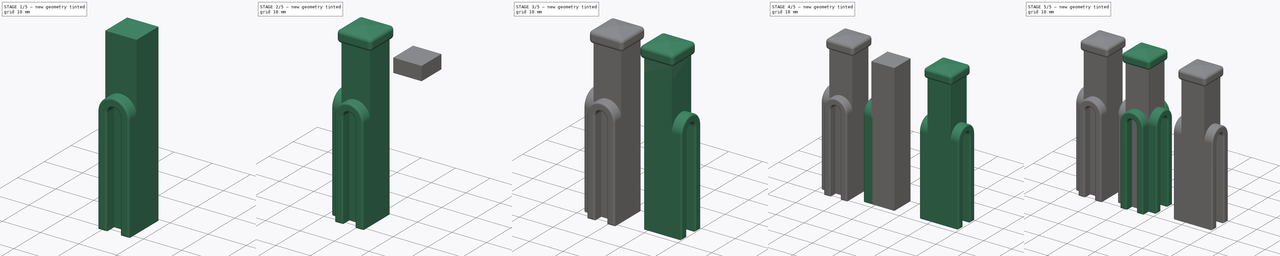
[diagram: build sequence overview — one tinted view per stage of 5, left to right]
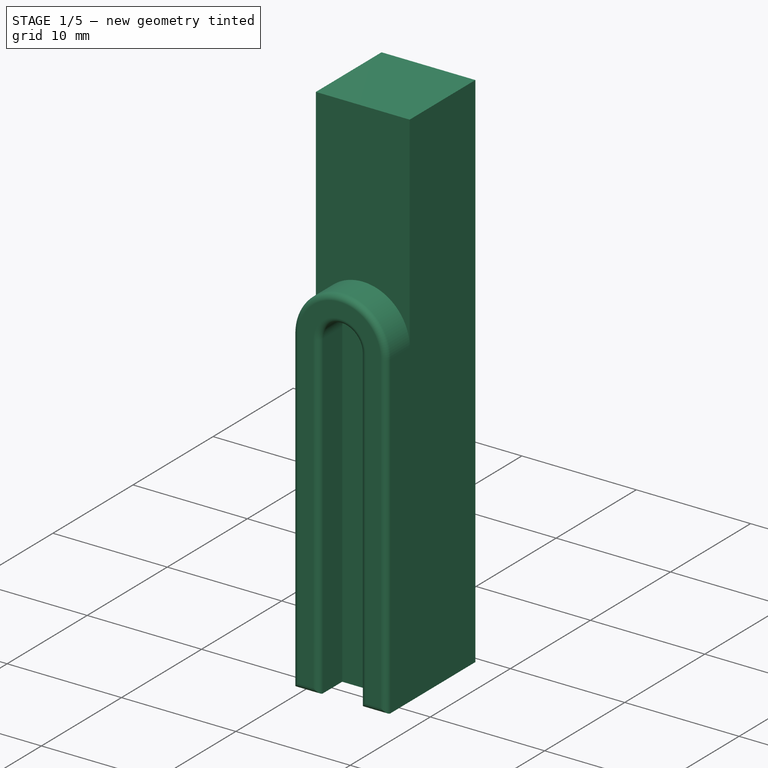
[diagram: stage 1 of 5 — iso view after this stage's code; geometry added in this stage tinted green]
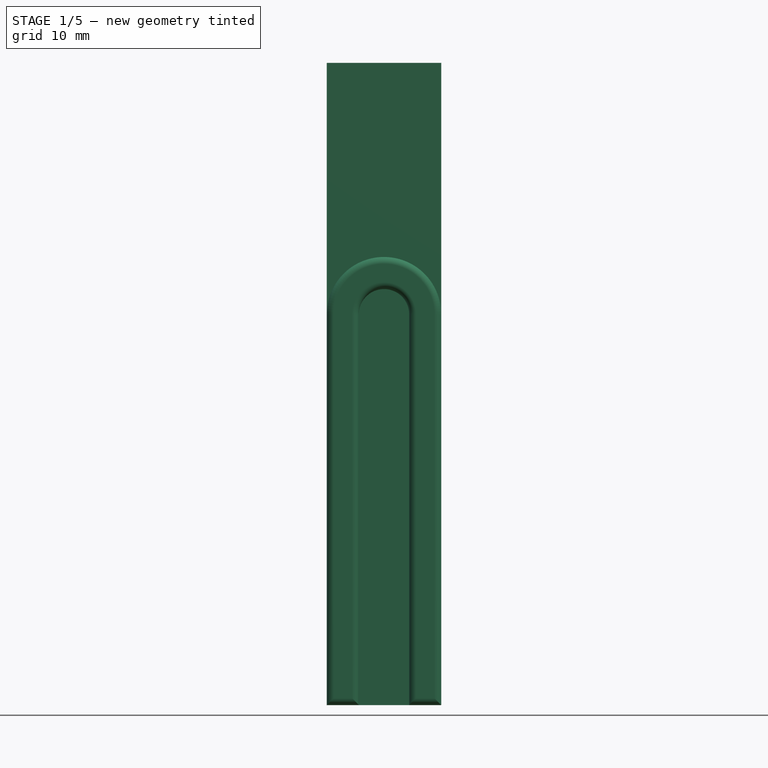
[diagram: stage 1 of 5 — front view after this stage's code; geometry added in this stage tinted green]
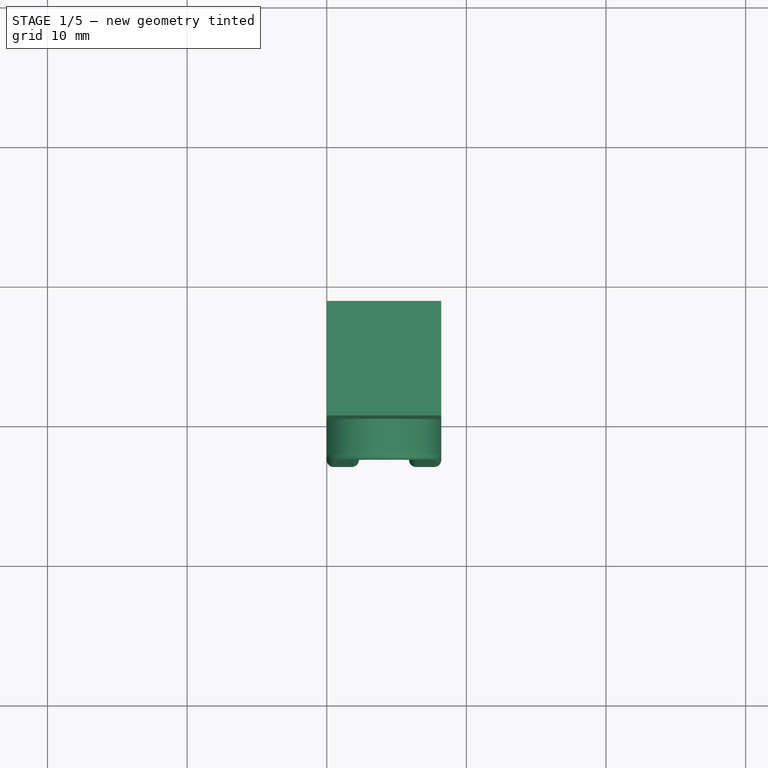
[diagram: stage 1 of 5 — top view after this stage's code; geometry added in this stage tinted green]
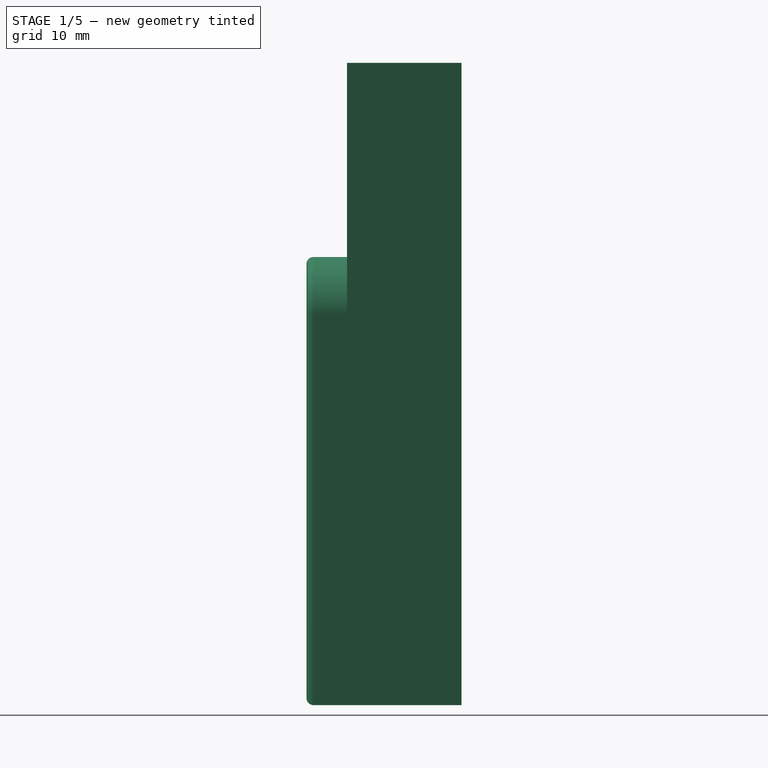
[diagram: stage 1 of 5 — right view after this stage's code; geometry added in this stage tinted green]
FCSTD DOCUMENT  (FreeCAD 0.15R4671 (Git))
Label: conector_almenara
License: All rights reserved
LicenseURL: http://en.wikipedia.org/wiki/All_rights_reserved
objects: Part::Box×9, Part::MultiFuse×6, Part::Fillet×6, Sketcher::SketchObject×6, Part::FeaturePython×5, Part::Wedge×3, PartDesign::Pad×3, PartDesign::Pocket×3, Part::Sphere×3, Part::Cut×3
note: 53 computed .brp shape members not serialized (recipe doc carries the construction recipe); baked Part::Feature solids carry a one-line shape summary decoded from their .brp

FEATURE [Part::Box] Box007  label="poste_solido_02"
  Height = 46
  Length = 8.2
  Width = 8.2
FEATURE [Sketcher::SketchObject] Sketch004
  Placement = pos=(0,0,0) rot=(0.57735,0.57735,0.57735;2.0944rad)
  sketch-geometry (8):
    g0: ArcOfCircle CenterX=0 CenterY=0 CenterZ=0 NormalX=0 NormalY=0 NormalZ=1 Radius=1.8 StartAngle=0 EndAngle=3.14159
    g1: ArcOfCircle CenterX=0 CenterY=0 CenterZ=0 NormalX=0 NormalY=0 NormalZ=1 Radius=4.1 StartAngle=0 EndAngle=3.14159
    g2: LineSegment StartX=-4.1 StartY=0 StartZ=0 EndX=-4.1 EndY=-28 EndZ=0
    g3: LineSegment StartX=-4.1 StartY=-28 StartZ=0 EndX=-1.8 EndY=-28 EndZ=0
    g4: LineSegment StartX=-1.8 StartY=-28 StartZ=0 EndX=-1.8 EndY=0 EndZ=0
    g5: LineSegment StartX=1.8 StartY=0 StartZ=0 EndX=1.8 EndY=-28 EndZ=0
    g6: LineSegment StartX=1.8 StartY=-28 StartZ=0 EndX=4.1 EndY=-28 EndZ=0
    g7: LineSegment StartX=4.1 StartY=-28 StartZ=0 EndX=4.1 EndY=0 EndZ=0
  constraints (25):
    c: Coincident(g0,g-1)
    c: PointOnObject(g0,g-1)
    c: Coincident(g1,g-1)
    c: PointOnObject(g1,g-1)
    c: PointOnObject(g1,g-1)
    c: Coincident(g2,g1)
    c: Vertical(g2)
    c: Coincident(g3,g2)
    c: Horizontal(g3)
    c: Coincident(g4,g0)
    c: Vertical(g4)
    c: Coincident(g5,g0)
    c: Vertical(g5)
    c: Horizontal(g6)
    c: Coincident(g7,g6)
    c: Coincident(g7,g1)
    c: Vertical(g7)
    c: Equal(g2,g4)
    c: Equal(g4,g5)
    c: Equal(g5,g7)
    c: Equal(g3,g6)
    c: Radius(g0) = 1.8
    c: Coincident(g3,g4)
    c: Radius(g1) = 4.1
    c: DistanceY(g2) = -28
FEATURE [PartDesign::Pad] Pad002
  Length = 3.3
  Length2 = 100
  Placement = pos=(0,0,0) rot=(0.57735,0.57735,0.57735;2.0944rad)
  Sketch = -> Sketch004
  Type = 0
FEATURE [Part::Fillet] Fillet005  label="arco1_02"
  Base = -> Pad002
  Edges = 8 edges r=0.5: [Edge4,Edge7,Edge10,Edge13,Edge16,Edge19,Edge22,Edge24]
  Placement = pos=(0.4,4.1,28) rot=(0,0,1;3.14159rad)
FEATURE [Part::FeaturePython] Clone004  label="arco3_03"  # Draft clone (typed FeaturePython)
  Objects = -> [Fillet005]
  Placement = pos=(4.1,0.4,28) rot=(0,0,-1;1.5708rad)
  Scale = (1,1,1)
FEATURE [Sketcher::SketchObject] Sketch005
  ExternalGeometry = -> [Box007]
  Placement = pos=(0,0,0) rot=(1,0,0;3.14159rad)
  Support = -> Box007 [Face5]
  sketch-geometry (4):
    g0: LineSegment StartX=1.5 StartY=-1.5 StartZ=0 EndX=6.7 EndY=-1.5 EndZ=0
    g1: LineSegment StartX=6.7 StartY=-1.5 StartZ=0 EndX=6.7 EndY=-6.7 EndZ=0
    g2: LineSegment StartX=6.7 StartY=-6.7 StartZ=0 EndX=1.5 EndY=-6.7 EndZ=0
    g3: LineSegment StartX=1.5 StartY=-6.7 StartZ=0 EndX=1.5 EndY=-1.5 EndZ=0
  constraints (12):
    c: Coincident(g0,g1)
    c: Coincident(g1,g2)
    c: Coincident(g2,g3)
    c: Coincident(g3,g0)
    c: Horizontal(g0)
    c: Horizontal(g2)
    c: Vertical(g1)
    c: Vertical(g3)
    c: DistanceX(g-1,g0) = 1.5
    c: DistanceY(g-1,g0) = -1.5
    c: DistanceY(g1,g-6) = -1.5
    c: DistanceX(g1,g-6) = 1.5
FEATURE [PartDesign::Pocket] Pocket002  label="poste_vaciado_02"
  Length = 5
  Sketch = -> Sketch005
  Type = 1
FEATURE [Part::Box] Box009  label="Cube009"
  Height = 4
  Length = 8.2
  Width = 8.2
FEATURE [Part::Sphere] Sphere002
  Angle1 = -90
  Angle2 = 90
  Angle3 = 360
  Placement = pos=(4.1,4.1,0) rot=(0,0,1;0rad)
  Radius = 3.68
FEATURE [Part::Cut] Cut002  label="abovedado_interior_02"
  Base = -> Box009
  Placement = pos=(0,0,42) rot=(0,0,1;0rad)
  Tool = -> Sphere002
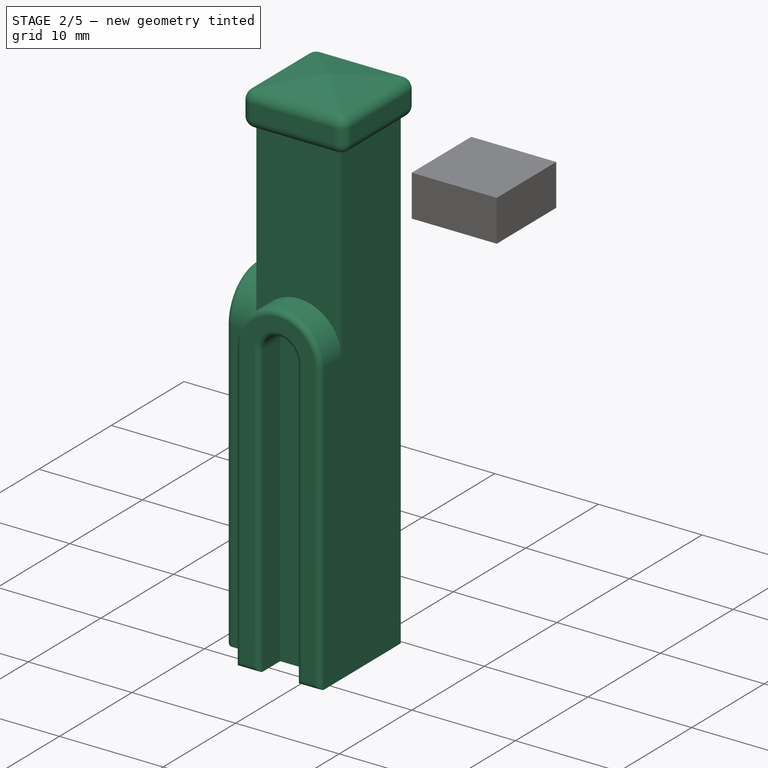
[diagram: stage 2 of 5 — iso view after this stage's code; geometry added in this stage tinted green]
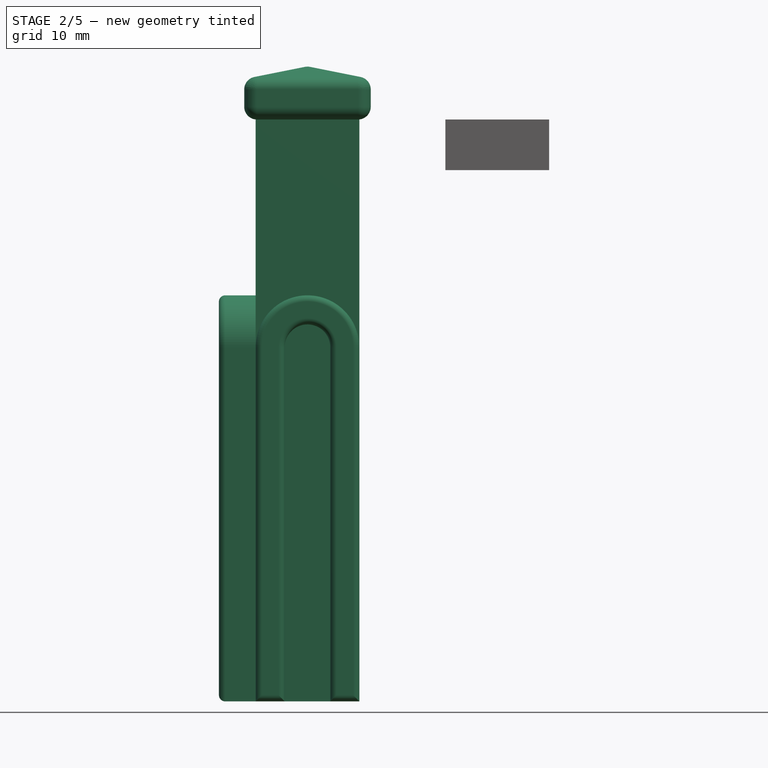
[diagram: stage 2 of 5 — front view after this stage's code; geometry added in this stage tinted green]
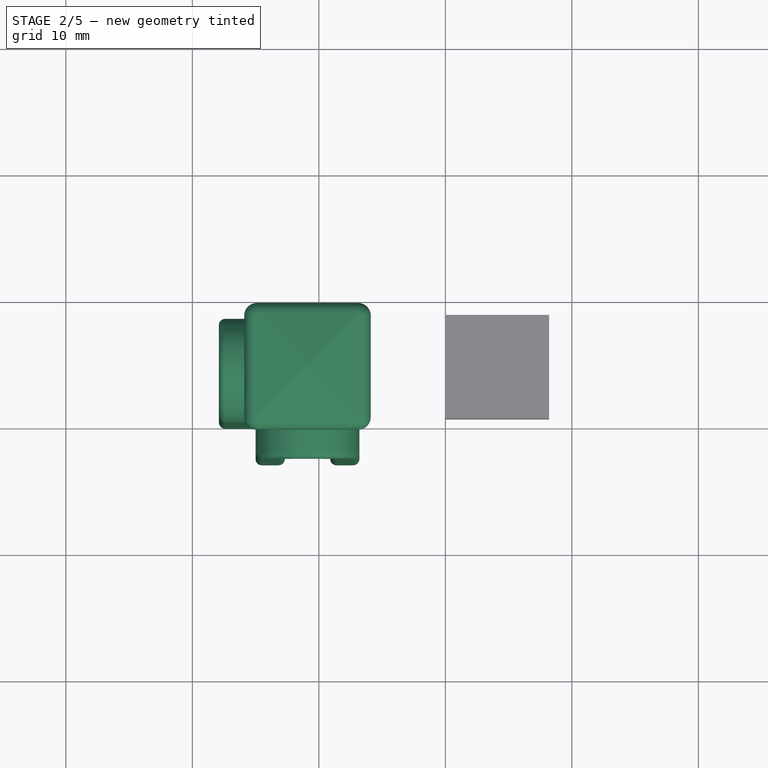
[diagram: stage 2 of 5 — top view after this stage's code; geometry added in this stage tinted green]
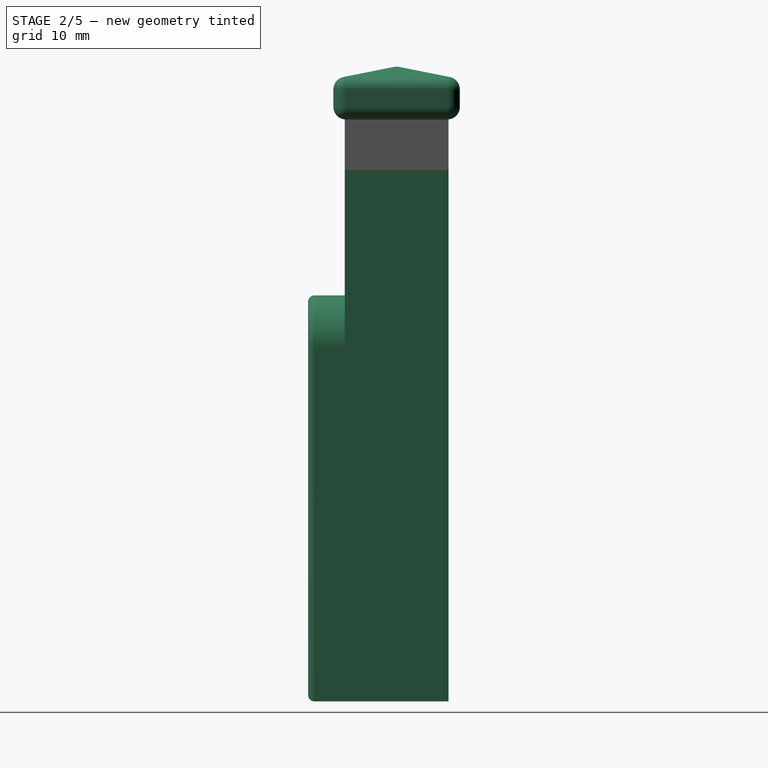
[diagram: stage 2 of 5 — right view after this stage's code; geometry added in this stage tinted green]
FEATURE [Part::Box] Box006  label="Cube006"
  Height = 4
  Length = 8.2
  Width = 8.2
FEATURE [Part::Sphere] Sphere001
  Angle1 = -90
  Angle2 = 90
  Angle3 = 360
  Placement = pos=(4.1,4.1,0) rot=(0,0,1;0rad)
  Radius = 3.68
FEATURE [Part::Cut] Cut001  label="abovedado_interior_01"
  Base = -> Box006
  Placement = pos=(0,0,42) rot=(0,0,1;0rad)
  Tool = -> Sphere001
FEATURE [Part::Wedge] Wedge002
  Placement = pos=(0,10,3.2) rot=(1,0,0;1.5708rad)
  X2max = 5
  X2min = 5
  Xmax = 10
  Xmin = 0
  Ymax = 1
  Ymin = 0
  Z2max = 5
  Z2min = 5
  Zmax = 10
  Zmin = 0
FEATURE [Part::Box] Box008  label="Cube008"
  Height = 3.2
  Length = 10
  Width = 10
FEATURE [Part::MultiFuse] Fusion004
  Shapes = -> [Wedge002,Box008]
FEATURE [Part::Fillet] Fillet004  label="remate_tope_02"
  Base = -> Fusion004
  Edges = 16 edges r=1: [Edge1,Edge2,Edge3,Edge4,Edge5,Edge6,Edge7,Edge8,Edge9,Edge10,Edge11,Edge12,Edge13,Edge14,Edge15,Edge16]
  Placement = pos=(-0.9,-0.9,46) rot=(0,0,1;0rad)
FEATURE [Part::MultiFuse] Fusion005  label="conector_almenara_esquina"
  Placement = pos=(-15,0,0) rot=(0,0,1;0rad)
  Shapes = -> [Fillet004,Pocket002,Fillet005,Clone004,Cut002,Box007]
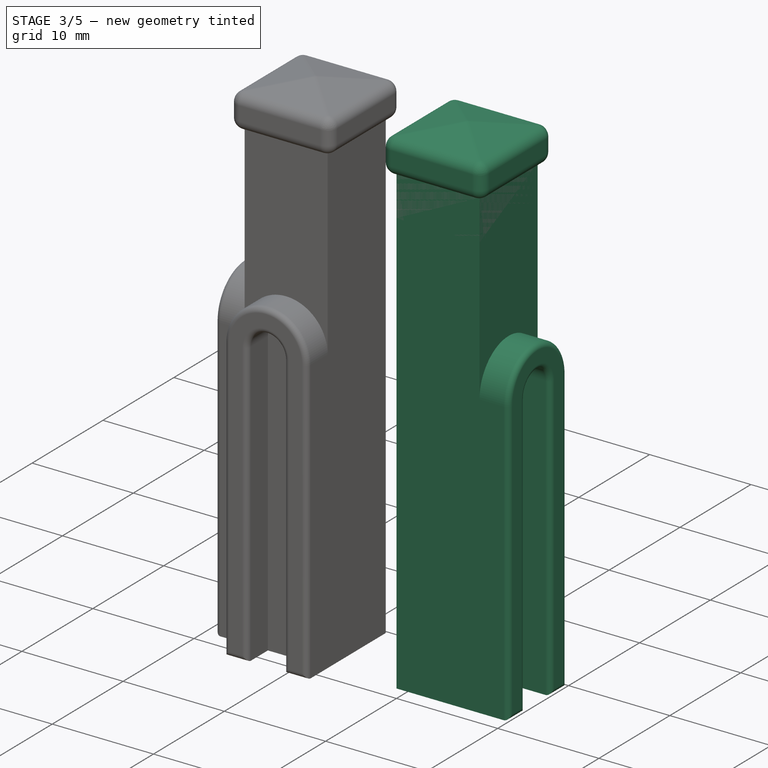
[diagram: stage 3 of 5 — iso view after this stage's code; geometry added in this stage tinted green]
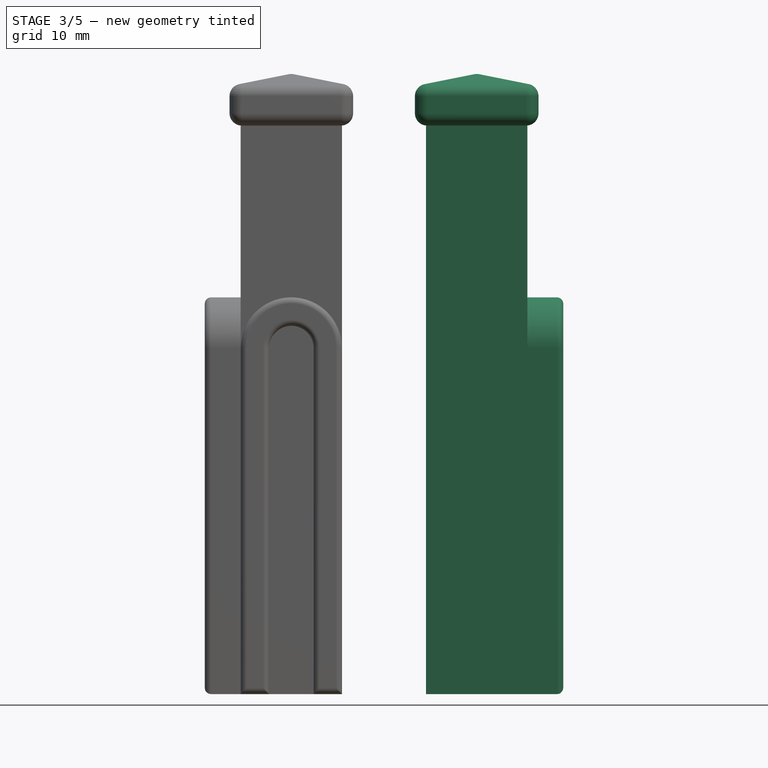
[diagram: stage 3 of 5 — front view after this stage's code; geometry added in this stage tinted green]
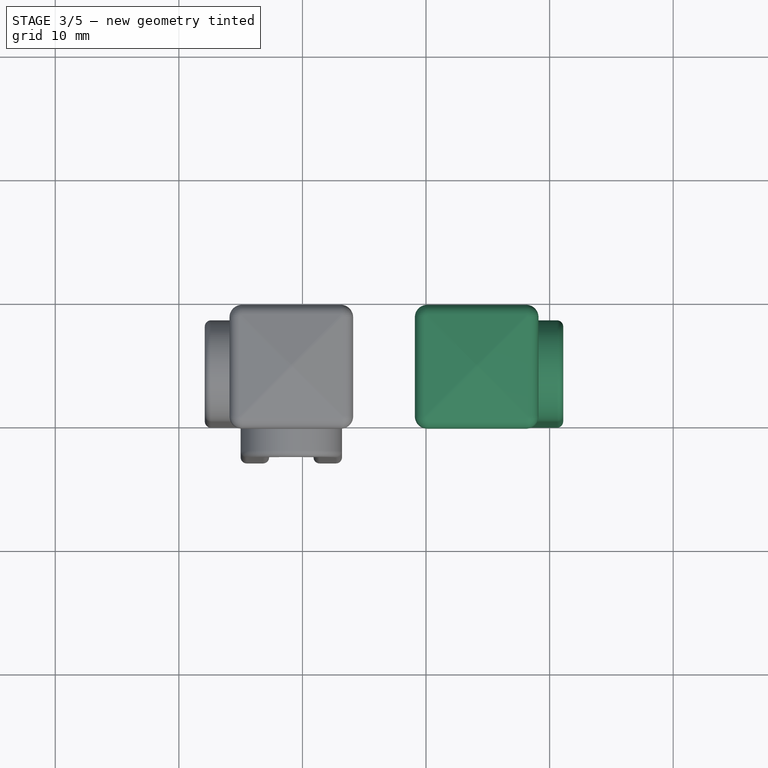
[diagram: stage 3 of 5 — top view after this stage's code; geometry added in this stage tinted green]
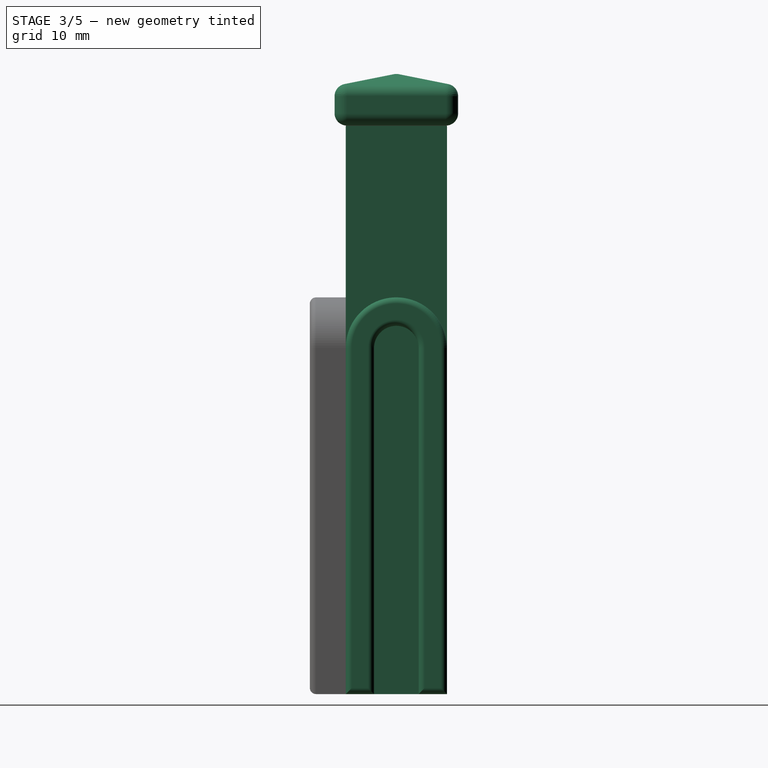
[diagram: stage 3 of 5 — right view after this stage's code; geometry added in this stage tinted green]
FEATURE [Part::Box] Box004  label="poste_solido_01"
  Height = 46
  Length = 8.2
  Width = 8.2
FEATURE [Part::Wedge] Wedge001
  Placement = pos=(0,10,3.2) rot=(1,0,0;1.5708rad)
  X2max = 5
  X2min = 5
  Xmax = 10
  Xmin = 0
  Ymax = 1
  Ymin = 0
  Z2max = 5
  Z2min = 5
  Zmax = 10
  Zmin = 0
FEATURE [Part::Box] Box005  label="Cube005"
  Height = 3.2
  Length = 10
  Width = 10
FEATURE [Part::MultiFuse] Fusion002
  Shapes = -> [Wedge001,Box005]
FEATURE [Part::Fillet] Fillet002  label="remate_tope_01"
  Base = -> Fusion002
  Edges = 16 edges r=1: [Edge1,Edge2,Edge3,Edge4,Edge5,Edge6,Edge7,Edge8,Edge9,Edge10,Edge11,Edge12,Edge13,Edge14,Edge15,Edge16]
  Placement = pos=(-0.9,-0.9,46) rot=(0,0,1;0rad)
FEATURE [Sketcher::SketchObject] Sketch002
  Placement = pos=(0,0,0) rot=(0.57735,0.57735,0.57735;2.0944rad)
  sketch-geometry (8):
    g0: ArcOfCircle CenterX=0 CenterY=0 CenterZ=0 NormalX=0 NormalY=0 NormalZ=1 Radius=1.8 StartAngle=0 EndAngle=3.14159
    g1: ArcOfCircle CenterX=0 CenterY=0 CenterZ=0 NormalX=0 NormalY=0 NormalZ=1 Radius=4.1 StartAngle=0 EndAngle=3.14159
    g2: LineSegment StartX=-4.1 StartY=0 StartZ=0 EndX=-4.1 EndY=-28 EndZ=0
    g3: LineSegment StartX=-4.1 StartY=-28 StartZ=0 EndX=-1.8 EndY=-28 EndZ=0
    g4: LineSegment StartX=-1.8 StartY=-28 StartZ=0 EndX=-1.8 EndY=0 EndZ=0
    g5: LineSegment StartX=1.8 StartY=0 StartZ=0 EndX=1.8 EndY=-28 EndZ=0
    g6: LineSegment StartX=1.8 StartY=-28 StartZ=0 EndX=4.1 EndY=-28 EndZ=0
    g7: LineSegment StartX=4.1 StartY=-28 StartZ=0 EndX=4.1 EndY=0 EndZ=0
  constraints (25):
    c: Coincident(g0,g-1)
    c: PointOnObject(g0,g-1)
    c: Coincident(g1,g-1)
    c: PointOnObject(g1,g-1)
    c: PointOnObject(g1,g-1)
    c: Coincident(g2,g1)
    c: Vertical(g2)
    c: Coincident(g3,g2)
    c: Horizontal(g3)
    c: Coincident(g4,g0)
    c: Vertical(g4)
    c: Coincident(g5,g0)
    c: Vertical(g5)
    c: Horizontal(g6)
    c: Coincident(g7,g6)
    c: Coincident(g7,g1)
    c: Vertical(g7)
    c: Equal(g2,g4)
    c: Equal(g4,g5)
    c: Equal(g5,g7)
    c: Equal(g3,g6)
    c: Radius(g0) = 1.8
    c: Coincident(g3,g4)
    c: Radius(g1) = 4.1
    c: DistanceY(g2) = -28
FEATURE [PartDesign::Pad] Pad001
  Length = 3.3
  Length2 = 100
  Placement = pos=(0,0,0) rot=(0.57735,0.57735,0.57735;2.0944rad)
  Sketch = -> Sketch002
  Type = 0
FEATURE [Part::Fillet] Fillet003  label="arco1_01"
  Base = -> Pad001
  Edges = 8 edges r=0.5: [Edge4,Edge7,Edge10,Edge13,Edge16,Edge19,Edge22,Edge24]
  Placement = pos=(0.4,4.1,28) rot=(0,0,1;3.14159rad)
FEATURE [Part::FeaturePython] Clone003  label="arco2_02"  # Draft clone (typed FeaturePython)
  Objects = -> [Fillet003]
  Placement = pos=(7.8,4.1,28) rot=(0,0,1;0rad)
  Scale = (1,1,1)
FEATURE [Sketcher::SketchObject] Sketch003
  ExternalGeometry = -> [Box004]
  Placement = pos=(0,0,0) rot=(1,0,0;3.14159rad)
  Support = -> Box004 [Face5]
  sketch-geometry (4):
    g0: LineSegment StartX=1.5 StartY=-1.5 StartZ=0 EndX=6.7 EndY=-1.5 EndZ=0
    g1: LineSegment StartX=6.7 StartY=-1.5 StartZ=0 EndX=6.7 EndY=-6.7 EndZ=0
    g2: LineSegment StartX=6.7 StartY=-6.7 StartZ=0 EndX=1.5 EndY=-6.7 EndZ=0
    g3: LineSegment StartX=1.5 StartY=-6.7 StartZ=0 EndX=1.5 EndY=-1.5 EndZ=0
  constraints (12):
    c: Coincident(g0,g1)
    c: Coincident(g1,g2)
    c: Coincident(g2,g3)
    c: Coincident(g3,g0)
    c: Horizontal(g0)
    c: Horizontal(g2)
    c: Vertical(g1)
    c: Vertical(g3)
    c: DistanceX(g-1,g0) = 1.5
    c: DistanceY(g-1,g0) = -1.5
    c: DistanceY(g1,g-6) = -1.5
    c: DistanceX(g1,g-6) = 1.5
FEATURE [PartDesign::Pocket] Pocket001  label="poste_vaciado_01"
  Length = 5
  Sketch = -> Sketch003
  Type = 1
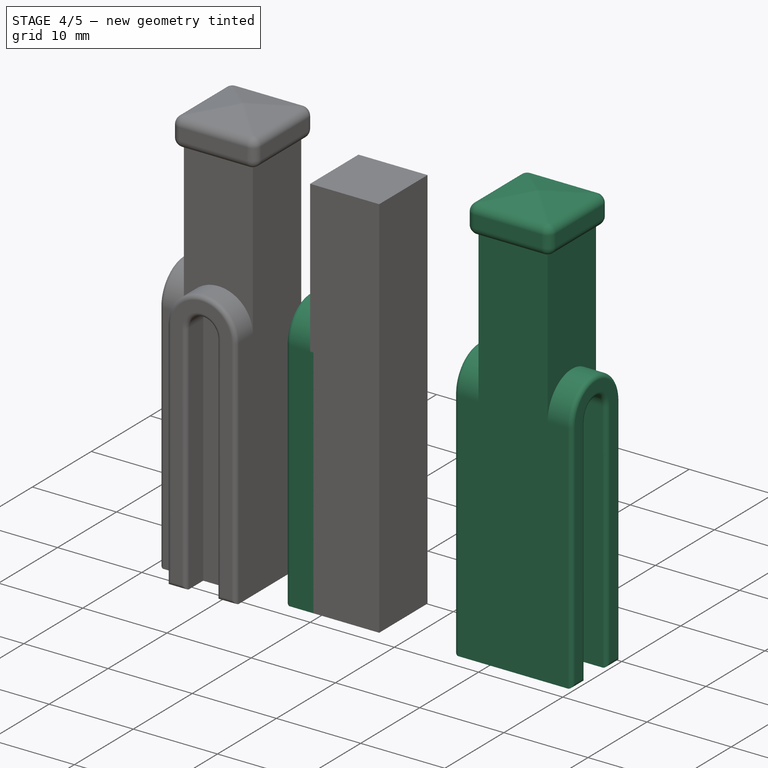
[diagram: stage 4 of 5 — iso view after this stage's code; geometry added in this stage tinted green]
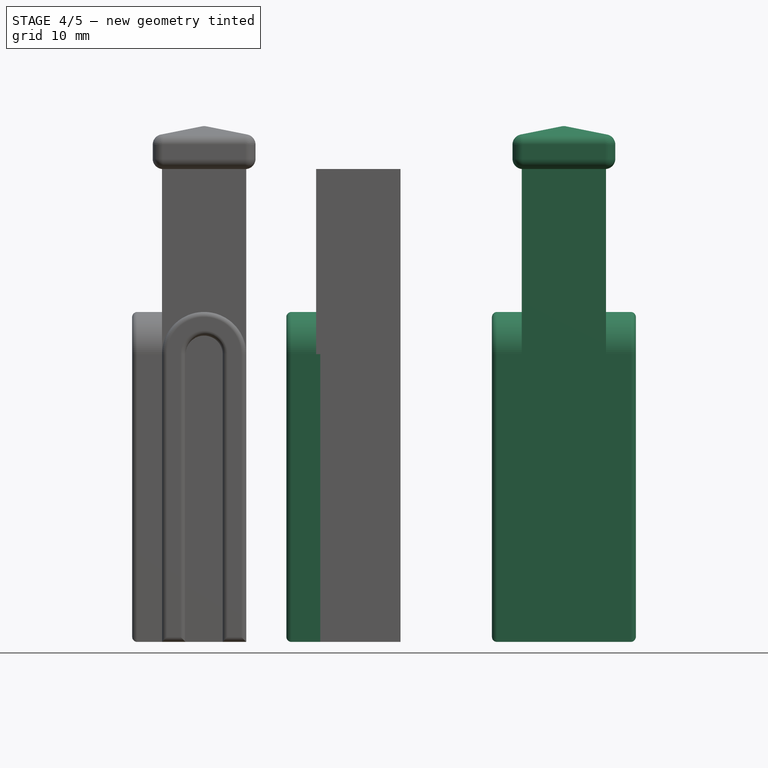
[diagram: stage 4 of 5 — front view after this stage's code; geometry added in this stage tinted green]
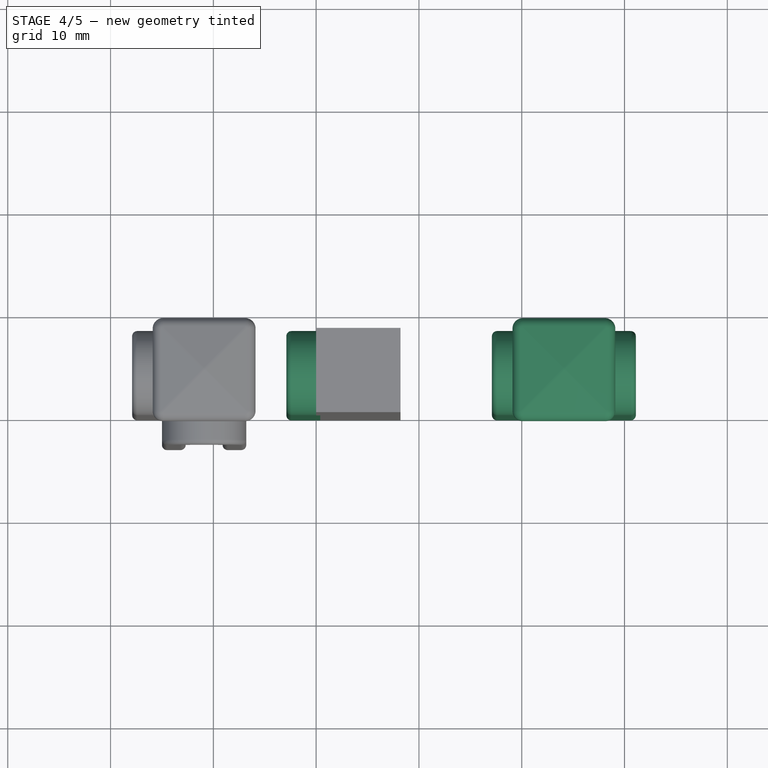
[diagram: stage 4 of 5 — top view after this stage's code; geometry added in this stage tinted green]
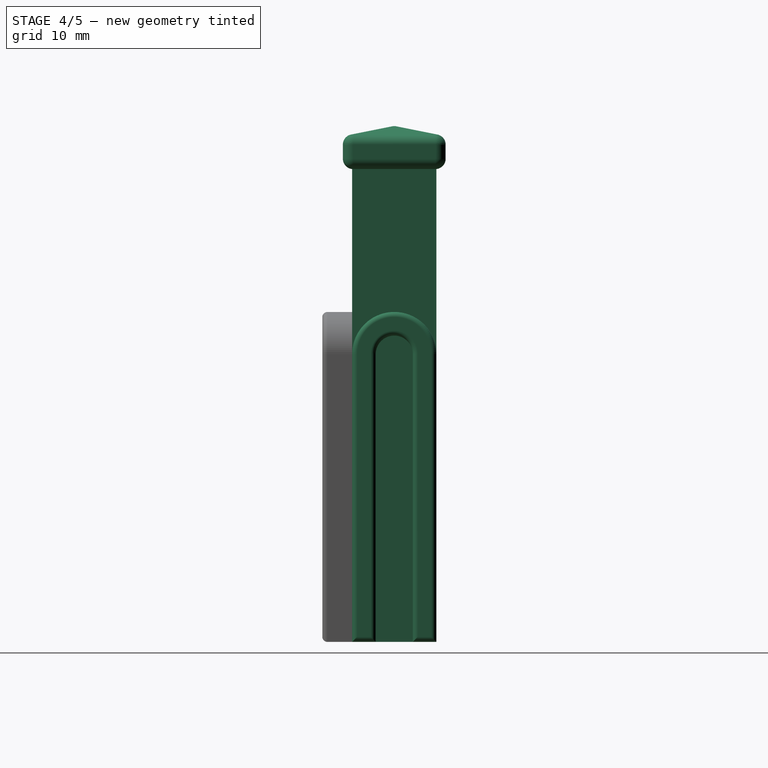
[diagram: stage 4 of 5 — right view after this stage's code; geometry added in this stage tinted green]
FEATURE [Part::Box] Box001  label="poste_solido"
  Height = 46
  Length = 8.2
  Width = 8.2
FEATURE [Sketcher::SketchObject] Sketch
  Placement = pos=(0,0,0) rot=(0.57735,0.57735,0.57735;2.0944rad)
  sketch-geometry (8):
    g0: ArcOfCircle CenterX=0 CenterY=0 CenterZ=0 NormalX=0 NormalY=0 NormalZ=1 Radius=1.8 StartAngle=0 EndAngle=3.14159
    g1: ArcOfCircle CenterX=0 CenterY=0 CenterZ=0 NormalX=0 NormalY=0 NormalZ=1 Radius=4.1 StartAngle=0 EndAngle=3.14159
    g2: LineSegment StartX=-4.1 StartY=0 StartZ=0 EndX=-4.1 EndY=-28 EndZ=0
    g3: LineSegment StartX=-4.1 StartY=-28 StartZ=0 EndX=-1.8 EndY=-28 EndZ=0
    g4: LineSegment StartX=-1.8 StartY=-28 StartZ=0 EndX=-1.8 EndY=0 EndZ=0
    g5: LineSegment StartX=1.8 StartY=0 StartZ=0 EndX=1.8 EndY=-28 EndZ=0
    g6: LineSegment StartX=1.8 StartY=-28 StartZ=0 EndX=4.1 EndY=-28 EndZ=0
    g7: LineSegment StartX=4.1 StartY=-28 StartZ=0 EndX=4.1 EndY=0 EndZ=0
  constraints (25):
    c: Coincident(g0,g-1)
    c: PointOnObject(g0,g-1)
    c: Coincident(g1,g-1)
    c: PointOnObject(g1,g-1)
    c: PointOnObject(g1,g-1)
    c: Coincident(g2,g1)
    c: Vertical(g2)
    c: Coincident(g3,g2)
    c: Horizontal(g3)
    c: Coincident(g4,g0)
    c: Vertical(g4)
    c: Coincident(g5,g0)
    c: Vertical(g5)
    c: Horizontal(g6)
    c: Coincident(g7,g6)
    c: Coincident(g7,g1)
    c: Vertical(g7)
    c: Equal(g2,g4)
    c: Equal(g4,g5)
    c: Equal(g5,g7)
    c: Equal(g3,g6)
    c: Radius(g0) = 1.8
    c: Coincident(g3,g4)
    c: Radius(g1) = 4.1
    c: DistanceY(g2) = -28
FEATURE [PartDesign::Pad] Pad
  Length = 3.3
  Length2 = 100
  Placement = pos=(0,0,0) rot=(0.57735,0.57735,0.57735;2.0944rad)
  Sketch = -> Sketch
  Type = 0
FEATURE [Part::Fillet] Fillet001  label="arco1"
  Base = -> Pad
  Edges = 8 edges r=0.5: [Edge4,Edge7,Edge10,Edge13,Edge16,Edge19,Edge22,Edge24]
  Placement = pos=(0.4,4.1,28) rot=(0,0,1;3.14159rad)
FEATURE [Sketcher::SketchObject] Sketch001
  ExternalGeometry = -> [Box001]
  Placement = pos=(0,0,0) rot=(1,0,0;3.14159rad)
  Support = -> Box001 [Face5]
  sketch-geometry (4):
    g0: LineSegment StartX=1.5 StartY=-1.5 StartZ=0 EndX=6.7 EndY=-1.5 EndZ=0
    g1: LineSegment StartX=6.7 StartY=-1.5 StartZ=0 EndX=6.7 EndY=-6.7 EndZ=0
    g2: LineSegment StartX=6.7 StartY=-6.7 StartZ=0 EndX=1.5 EndY=-6.7 EndZ=0
    g3: LineSegment StartX=1.5 StartY=-6.7 StartZ=0 EndX=1.5 EndY=-1.5 EndZ=0
  constraints (12):
    c: Coincident(g0,g1)
    c: Coincident(g1,g2)
    c: Coincident(g2,g3)
    c: Coincident(g3,g0)
    c: Horizontal(g0)
    c: Horizontal(g2)
    c: Vertical(g1)
    c: Vertical(g3)
    c: DistanceX(g-1,g0) = 1.5
    c: DistanceY(g-1,g0) = -1.5
    c: DistanceY(g1,g-6) = -1.5
    c: DistanceX(g1,g-6) = 1.5
FEATURE [PartDesign::Pocket] Pocket  label="poste_vaciado"
  Length = 5
  Sketch = -> Sketch001
  Type = 1
FEATURE [Part::Box] Box003  label="Cube003"
  Height = 4
  Length = 8.2
  Width = 8.2
FEATURE [Part::Sphere] Sphere
  Angle1 = -90
  Angle2 = 90
  Angle3 = 360
  Placement = pos=(4.1,4.1,0) rot=(0,0,1;0rad)
  Radius = 3.68
FEATURE [Part::Cut] Cut  label="abovedado_interior"
  Base = -> Box003
  Placement = pos=(0,0,42) rot=(0,0,1;0rad)
  Tool = -> Sphere
FEATURE [Part::MultiFuse] Fusion003  label="conector_almenara_linea"
  Placement = pos=(20,0,0) rot=(0,0,1;0rad)
  Shapes = -> [Cut001,Fillet002,Fillet003,Clone003,Pocket001,Box004]
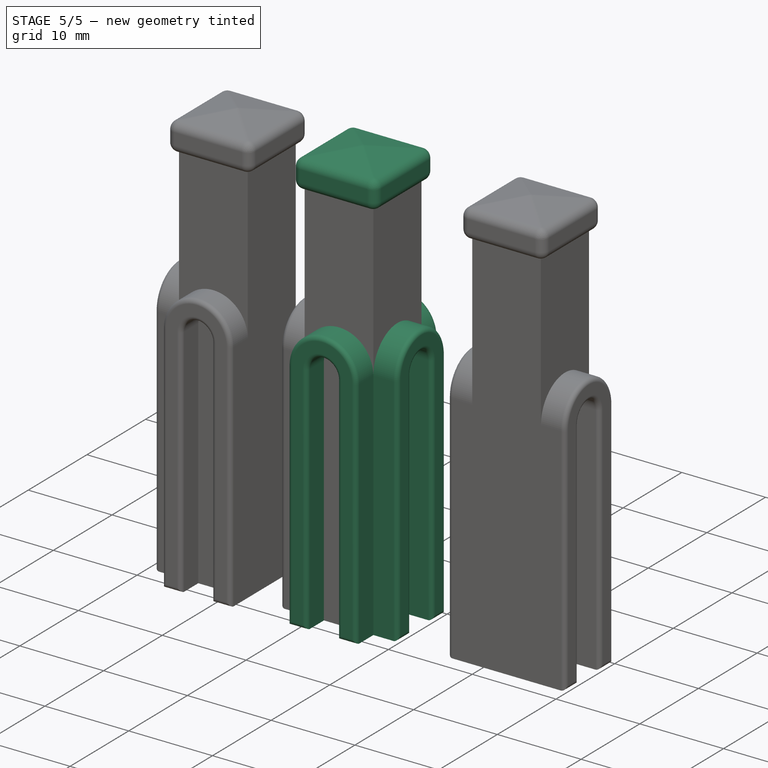
[diagram: stage 5 of 5 — iso view after this stage's code; geometry added in this stage tinted green]
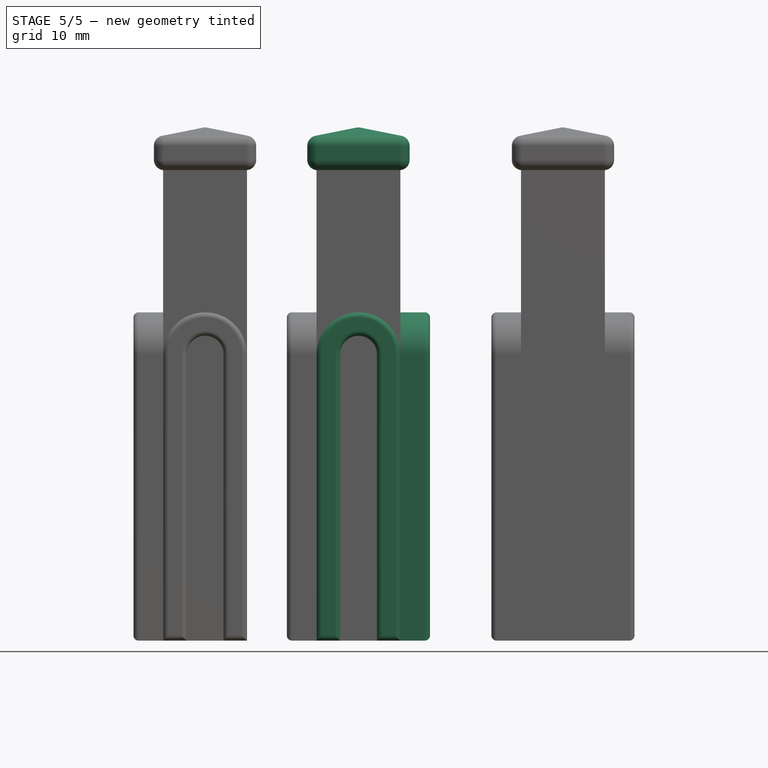
[diagram: stage 5 of 5 — front view after this stage's code; geometry added in this stage tinted green]
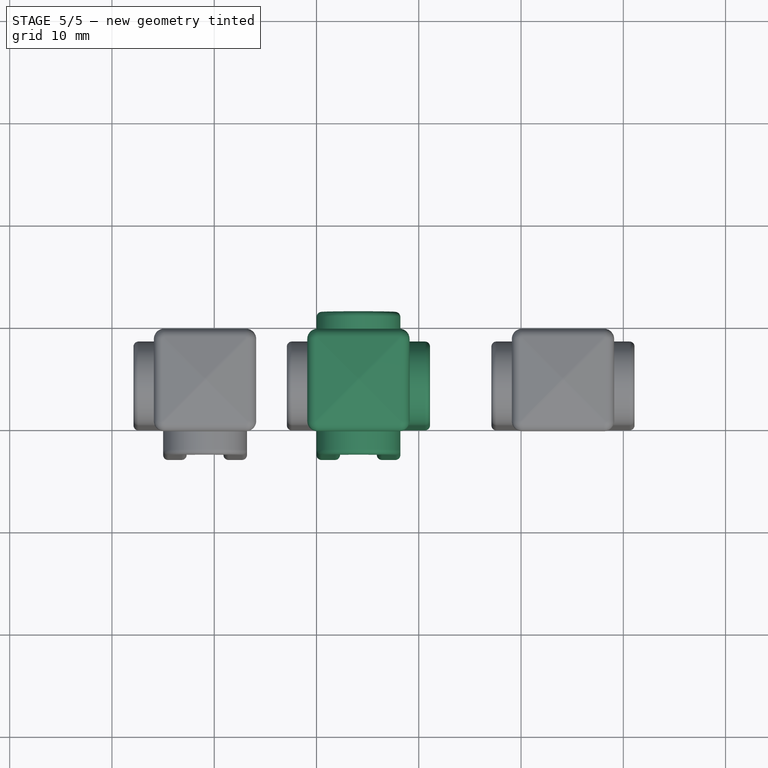
[diagram: stage 5 of 5 — top view after this stage's code; geometry added in this stage tinted green]
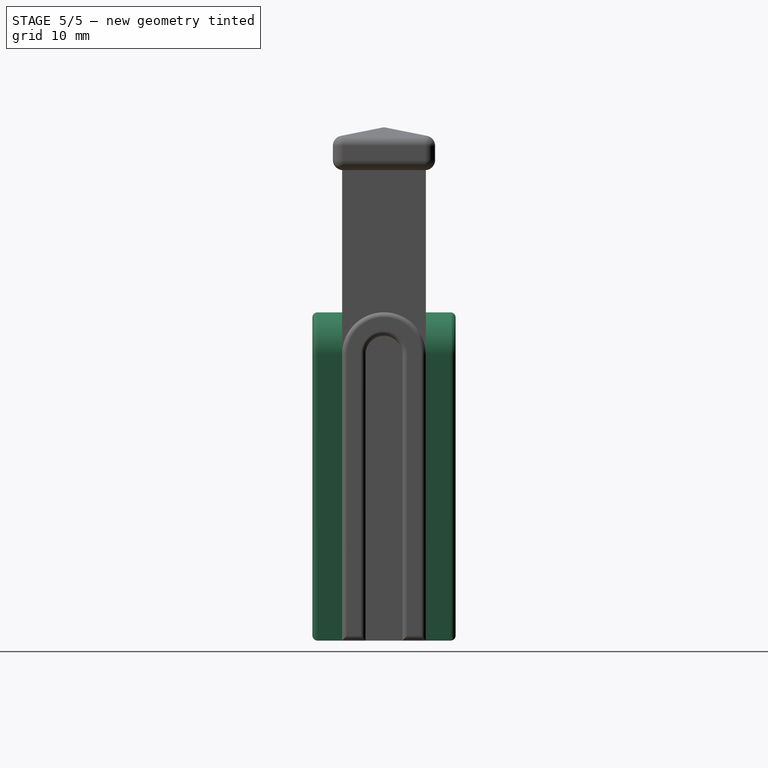
[diagram: stage 5 of 5 — right view after this stage's code; geometry added in this stage tinted green]
FEATURE [Part::Wedge] Wedge
  Placement = pos=(0,10,3.2) rot=(1,0,0;1.5708rad)
  X2max = 5
  X2min = 5
  Xmax = 10
  Xmin = 0
  Ymax = 1
  Ymin = 0
  Z2max = 5
  Z2min = 5
  Zmax = 10
  Zmin = 0
FEATURE [Part::Box] Box002  label="Cube002"
  Height = 3.2
  Length = 10
  Width = 10
FEATURE [Part::MultiFuse] Fusion
  Shapes = -> [Wedge,Box002]
FEATURE [Part::Fillet] Fillet  label="remate_tope"
  Base = -> Fusion
  Edges = 16 edges r=1: [Edge1,Edge2,Edge3,Edge4,Edge5,Edge6,Edge7,Edge8,Edge9,Edge10,Edge11,Edge12,Edge13,Edge14,Edge15,Edge16]
  Placement = pos=(-0.9,-0.9,46) rot=(0,0,1;0rad)
FEATURE [Part::FeaturePython] Clone  label="arco2"  # Draft clone (typed FeaturePython)
  Objects = -> [Fillet001]
  Placement = pos=(7.8,4.1,28) rot=(0,0,1;0rad)
  Scale = (1,1,1)
FEATURE [Part::FeaturePython] Clone001  label="arco3"  # Draft clone (typed FeaturePython)
  Objects = -> [Fillet001]
  Placement = pos=(4.1,0.4,28) rot=(0,0,-1;1.5708rad)
  Scale = (1,1,1)
FEATURE [Part::FeaturePython] Clone002  label="arco4"  # Draft clone (typed FeaturePython)
  Objects = -> [Clone]
  Placement = pos=(4.1,7.8,28) rot=(0,0,1;1.5708rad)
  Scale = (1,1,1)
FEATURE [Part::MultiFuse] Fusion001  label="conector_almenara"
  Shapes = -> [Cut,Fillet,Fillet001,Clone,Clone001,Clone002,Pocket,Box001]
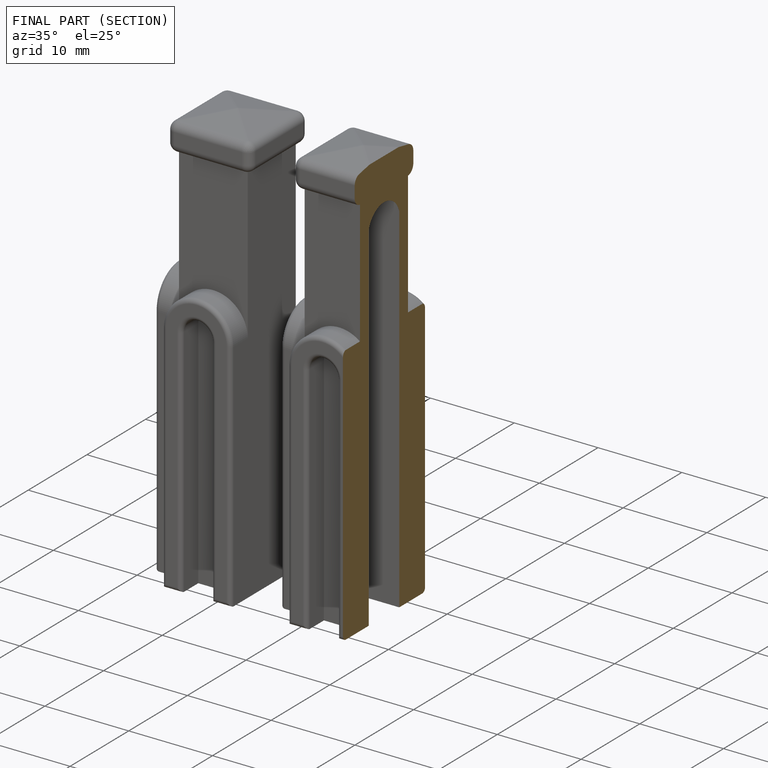
[diagram: finished part — half-section view (interior)]
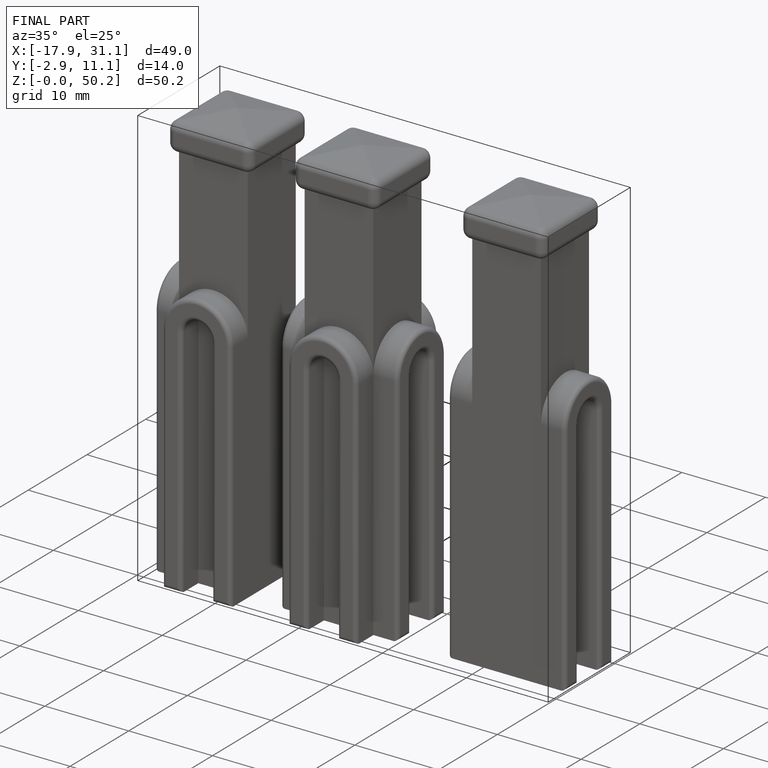
[diagram: finished part — iso view with bounding-box wireframe]
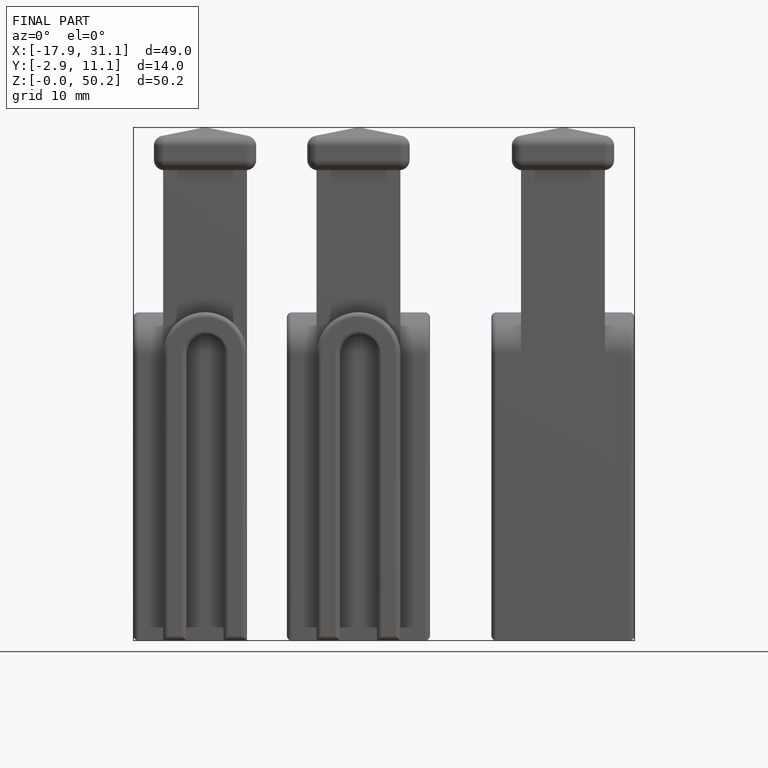
[diagram: finished part — front view with bounding-box wireframe]
